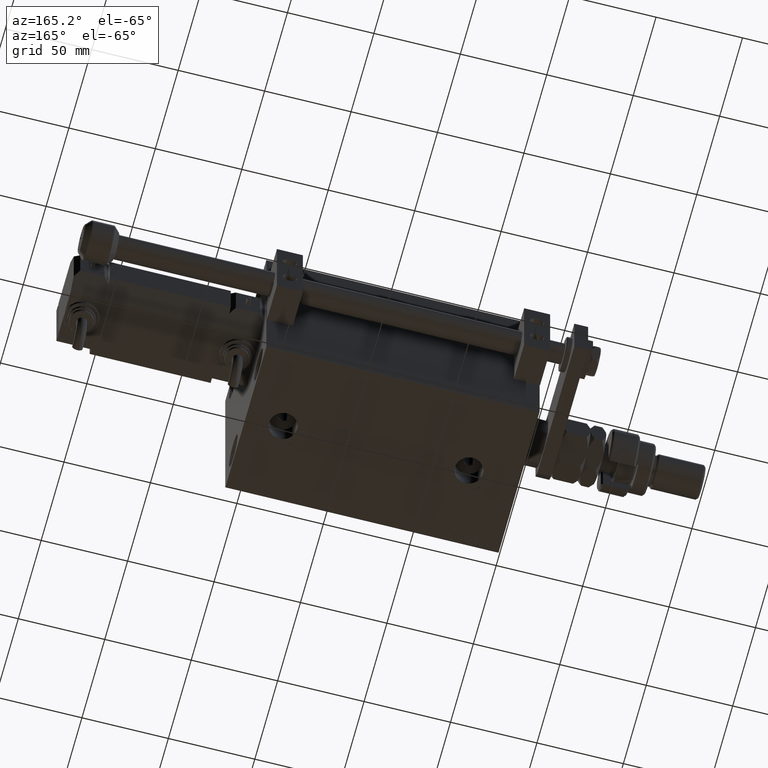
[diagram: clean part render]
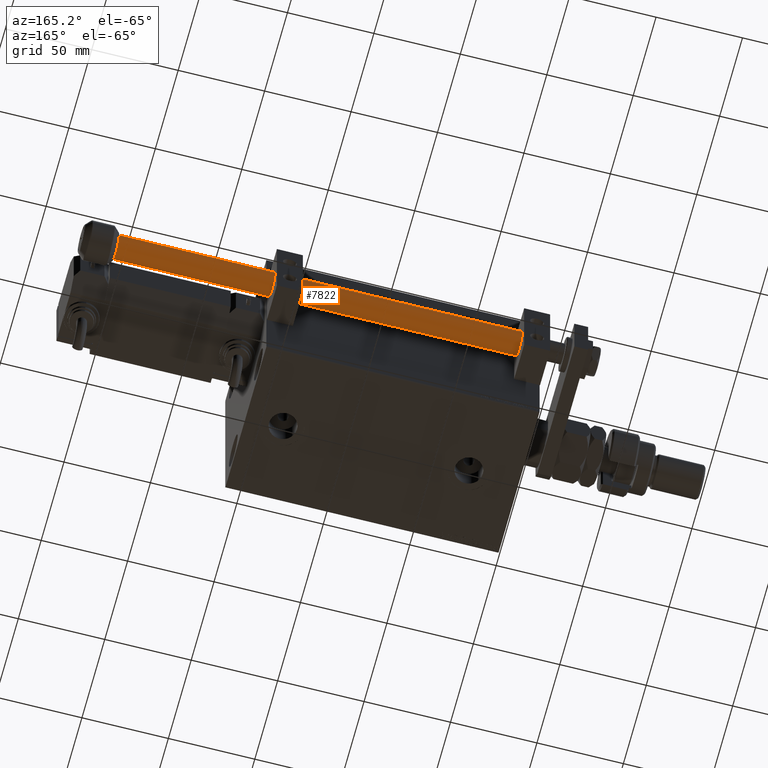
[diagram: same view with one face highlighted and labeled with its STEP entity id]
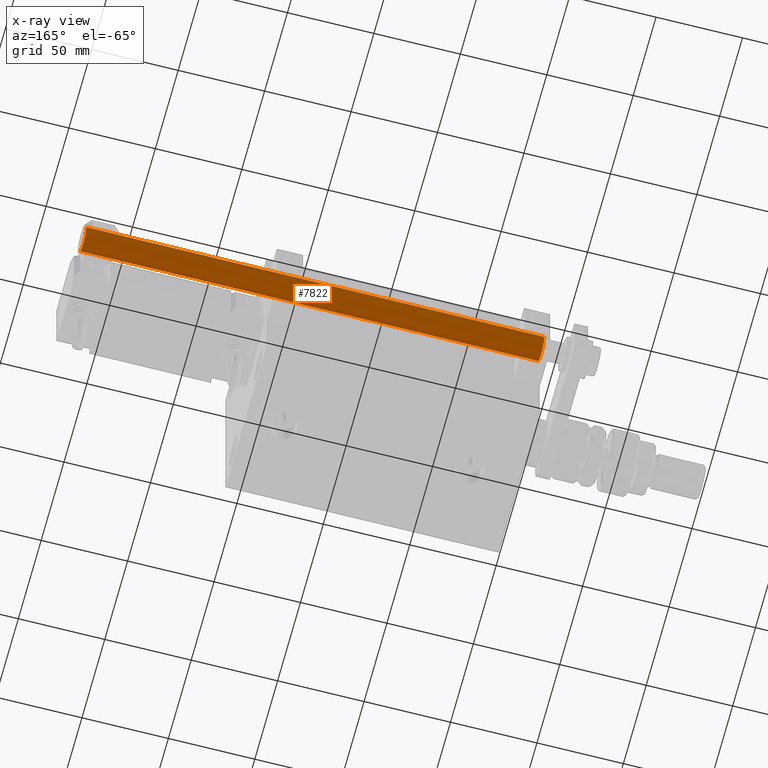
[diagram: x-ray of the same camera — body ghosted, the highlighted face saturated]
A machine part, auxiliary view. The second image highlights one B-rep face of the part: STEP entity #7822.
The next image is the same camera in x-ray: the body ghosted, the highlighted face saturated — about 0% of this face is hidden behind the body in this view.
In plain terms, the highlighted cylindrical surface (edge-blend (fillet) strip) has radius 7 mm, axis along (-1, 0, 0).
Its self-contained STEP definition (entity closure, byte-faithful):
#355 = AXIS2_PLACEMENT_3D ( 'NONE', #35554, #10475, #31454 ) ;
#602 = CIRCLE ( 'NONE', #44114, 7.000000000000000000 ) ;
#768 = VECTOR ( 'NONE', #11579, 1000.000000000000000 ) ;
#1850 = EDGE_CURVE ( 'NONE', #2322, #29293, #50048, .T. ) ;
#1899 = ORIENTED_EDGE ( 'NONE', *, *, #1850, .T. ) ;
#2322 = VERTEX_POINT ( 'NONE', #18737 ) ;
#3206 = CIRCLE ( 'NONE', #11891, 7.000000000000000000 ) ;
#3368 = CARTESIAN_POINT ( 'NONE',  ( 0.5000000000000000000, 6.982120021884470340, 267.0000000000000000 ) ) ;
#3894 = VECTOR ( 'NONE', #35626, 1000.000000000000000 ) ;
#6246 = DIRECTION ( 'NONE',  ( -1.000000000000000000, 0.000000000000000000, 0.000000000000000000 ) ) ;
#6435 = CIRCLE ( 'NONE', #355, 7.000000000000000000 ) ;
#7107 = CARTESIAN_POINT ( 'NONE',  ( -7.000000000000000000, 0.000000000000000000, 2.000000000000057288 ) ) ;
#7822 = ADVANCED_FACE ( 'NONE', ( #42788 ), #26933, .T. ) ;
#8133 = EDGE_CURVE ( 'NONE', #28997, #17944, #3206, .T. ) ;
#8182 = EDGE_CURVE ( 'NONE', #29293, #28997, #602, .T. ) ;
#9102 = DIRECTION ( 'NONE',  ( 0.000000000000000000, 0.000000000000000000, -1.000000000000000000 ) ) ;
#9993 = AXIS2_PLACEMENT_3D ( 'NONE', #22140, #9102, #29269 ) ;
#10475 = DIRECTION ( 'NONE',  ( -0.000000000000000000, -0.000000000000000000, 1.000000000000000000 ) ) ;
#10966 = ORIENTED_EDGE ( 'NONE', *, *, #38411, .T. ) ;
#11579 = DIRECTION ( 'NONE',  ( -0.000000000000000000, -0.000000000000000000, -1.000000000000000000 ) ) ;
#11891 = AXIS2_PLACEMENT_3D ( 'NONE', #52789, #32342, #24149 ) ;
#12765 = VERTEX_POINT ( 'NONE', #7107 ) ;
#12989 = CARTESIAN_POINT ( 'NONE',  ( -0.4999999999999992784, 6.982120021884471228, 267.0000000000000000 ) ) ;
#13232 = CARTESIAN_POINT ( 'NONE',  ( 0.000000000000000000, 0.000000000000000000, 267.0000000000000000 ) ) ;
#13494 = DIRECTION ( 'NONE',  ( 0.000000000000000000, 0.000000000000000000, -1.000000000000000000 ) ) ;
#16245 = AXIS2_PLACEMENT_3D ( 'NONE', #52019, #43582, #6246 ) ;
#17944 = VERTEX_POINT ( 'NONE', #43812 ) ;
#18737 = CARTESIAN_POINT ( 'NONE',  ( -7.000000000000000000, 0.000000000000000000, 267.0000000000000000 ) ) ;
#20463 = CARTESIAN_POINT ( 'NONE',  ( 7.000000000000000000, 8.572527594031473190E-16, 2.000000000000057288 ) ) ;
#20997 = ORIENTED_EDGE ( 'NONE', *, *, #38985, .T. ) ;
#22140 = CARTESIAN_POINT ( 'NONE',  ( 0.000000000000000000, 0.000000000000000000, 267.0000000000000000 ) ) ;
#23397 = ORIENTED_EDGE ( 'NONE', *, *, #8182, .T. ) ;
#24149 = DIRECTION ( 'NONE',  ( 1.000000000000000000, -8.881784197001252323E-16, 0.000000000000000000 ) ) ;
#25480 = VERTEX_POINT ( 'NONE', #20463 ) ;
#26933 = CYLINDRICAL_SURFACE ( 'NONE', #16245, 7.000000000000000000 ) ;
#27187 = CARTESIAN_POINT ( 'NONE',  ( -7.000000000000000000, 0.000000000000000000, 268.0000000000000000 ) ) ;
#27428 = CARTESIAN_POINT ( 'NONE',  ( 7.000000000000000000, 8.572527594031473190E-16, 268.0000000000000000 ) ) ;
#27693 = LINE ( 'NONE', #27428, #3894 ) ;
#28997 = VERTEX_POINT ( 'NONE', #3368 ) ;
#29269 = DIRECTION ( 'NONE',  ( 1.000000000000000000, 0.000000000000000000, 0.000000000000000000 ) ) ;
#29293 = VERTEX_POINT ( 'NONE', #12989 ) ;
#31454 = DIRECTION ( 'NONE',  ( 1.000000000000000000, 0.000000000000000000, 0.000000000000000000 ) ) ;
#32342 = DIRECTION ( 'NONE',  ( 0.000000000000000000, 0.000000000000000000, -1.000000000000000000 ) ) ;
#35554 = CARTESIAN_POINT ( 'NONE',  ( 0.000000000000000000, 0.000000000000000000, 2.000000000000057288 ) ) ;
#35626 = DIRECTION ( 'NONE',  ( -0.000000000000000000, -0.000000000000000000, -1.000000000000000000 ) ) ;
#36344 = ORIENTED_EDGE ( 'NONE', *, *, #48720, .F. ) ;
#37252 = DIRECTION ( 'NONE',  ( 1.000000000000000000, 0.000000000000000000, 0.000000000000000000 ) ) ;
#38411 = EDGE_CURVE ( 'NONE', #25480, #12765, #6435, .T. ) ;
#38985 = EDGE_CURVE ( 'NONE', #17944, #25480, #27693, .T. ) ;
#42788 = FACE_OUTER_BOUND ( 'NONE', #51370, .T. ) ;
#43582 = DIRECTION ( 'NONE',  ( -0.000000000000000000, -0.000000000000000000, -1.000000000000000000 ) ) ;
#43812 = CARTESIAN_POINT ( 'NONE',  ( 7.000000000000000000, 8.572527594031473190E-16, 267.0000000000000000 ) ) ;
#44114 = AXIS2_PLACEMENT_3D ( 'NONE', #13232, #13494, #37252 ) ;
#44856 = LINE ( 'NONE', #27187, #768 ) ;
#48720 = EDGE_CURVE ( 'NONE', #2322, #12765, #44856, .T. ) ;
#50048 = CIRCLE ( 'NONE', #9993, 7.000000000000000000 ) ;
#51370 = EDGE_LOOP ( 'NONE', ( #52738, #20997, #10966, #36344, #1899, #23397 ) ) ;
#52019 = CARTESIAN_POINT ( 'NONE',  ( 0.000000000000000000, 0.000000000000000000, 268.0000000000000000 ) ) ;
#52738 = ORIENTED_EDGE ( 'NONE', *, *, #8133, .T. ) ;
#52789 = CARTESIAN_POINT ( 'NONE',  ( 0.000000000000000000, 0.000000000000000000, 267.0000000000000000 ) ) ;